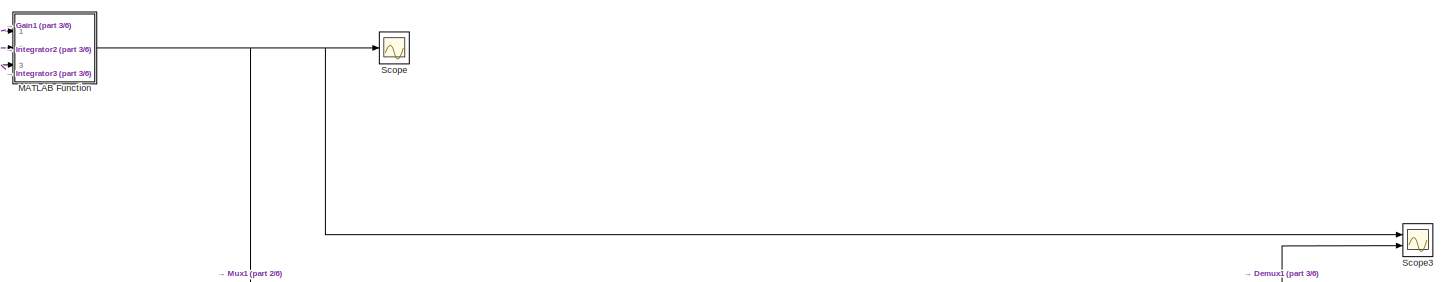
[diagram: root canvas - part 1/6, top left region]
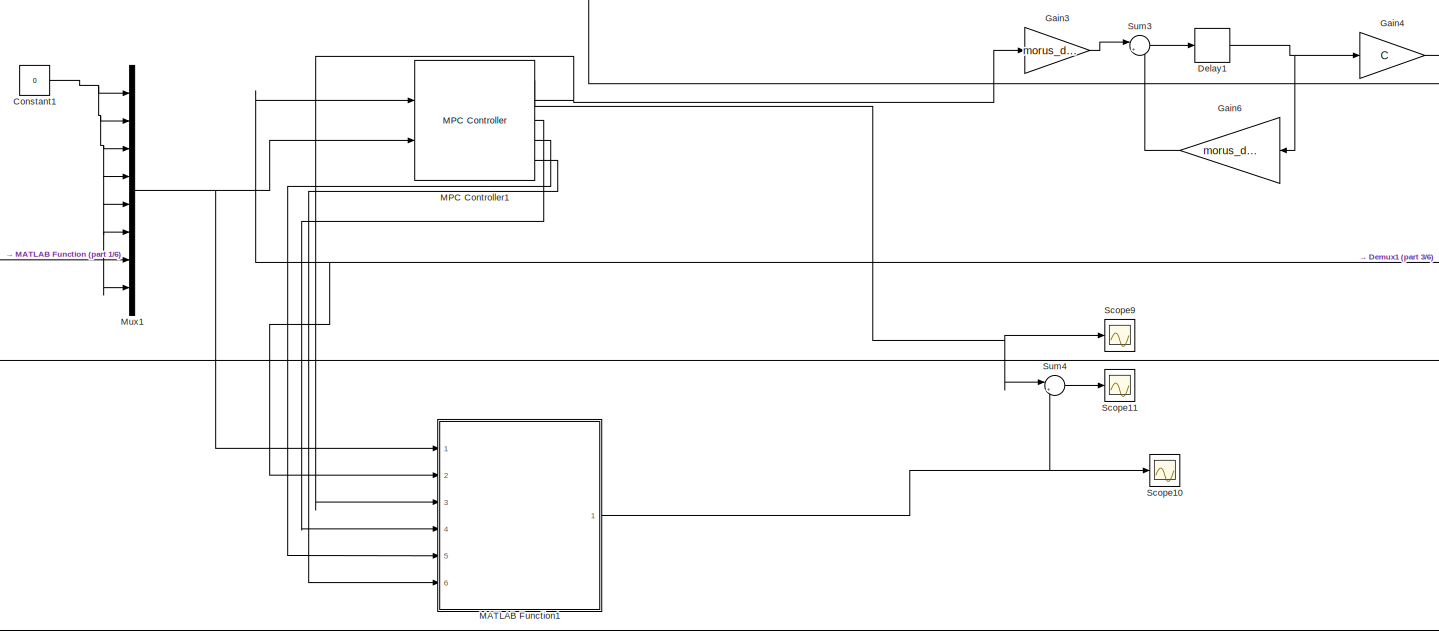
[diagram: root canvas - part 2/6, top center region]
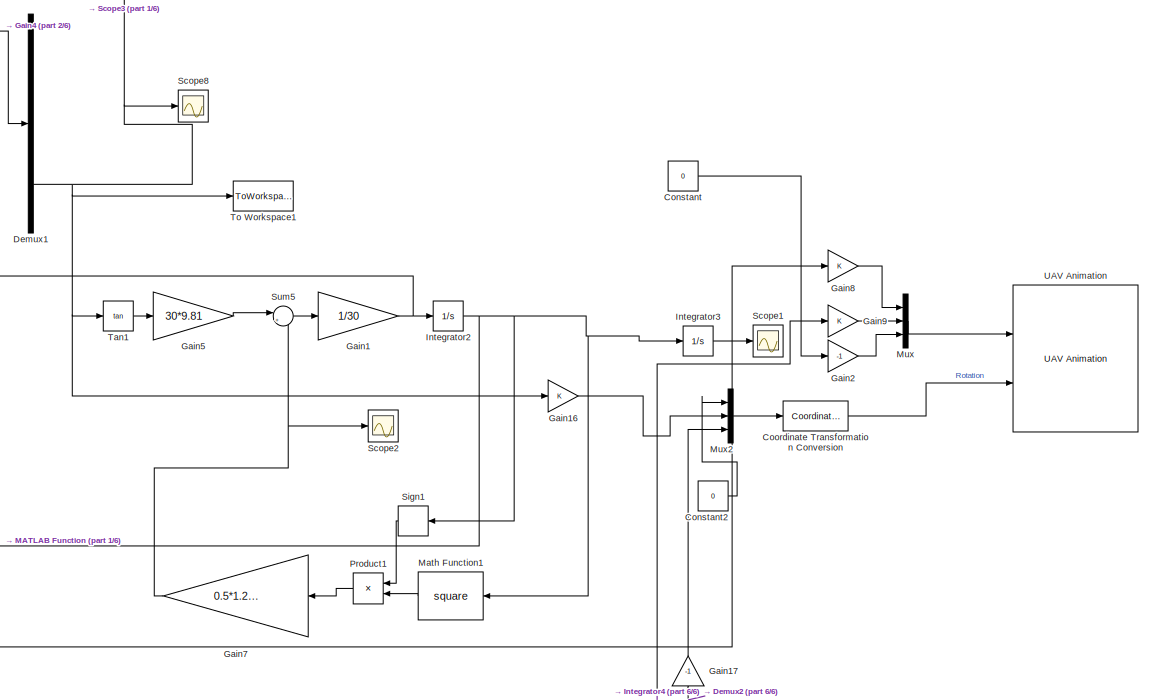
[diagram: root canvas - part 3/6, middle right region]
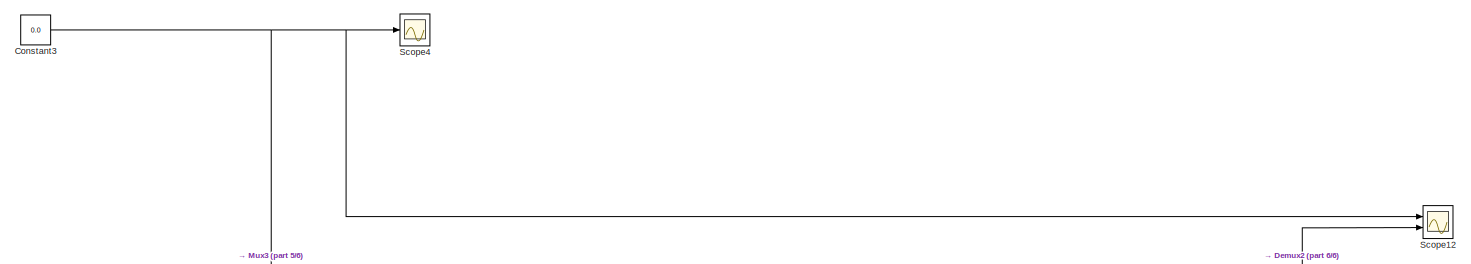
[diagram: root canvas - part 4/6, middle left region]
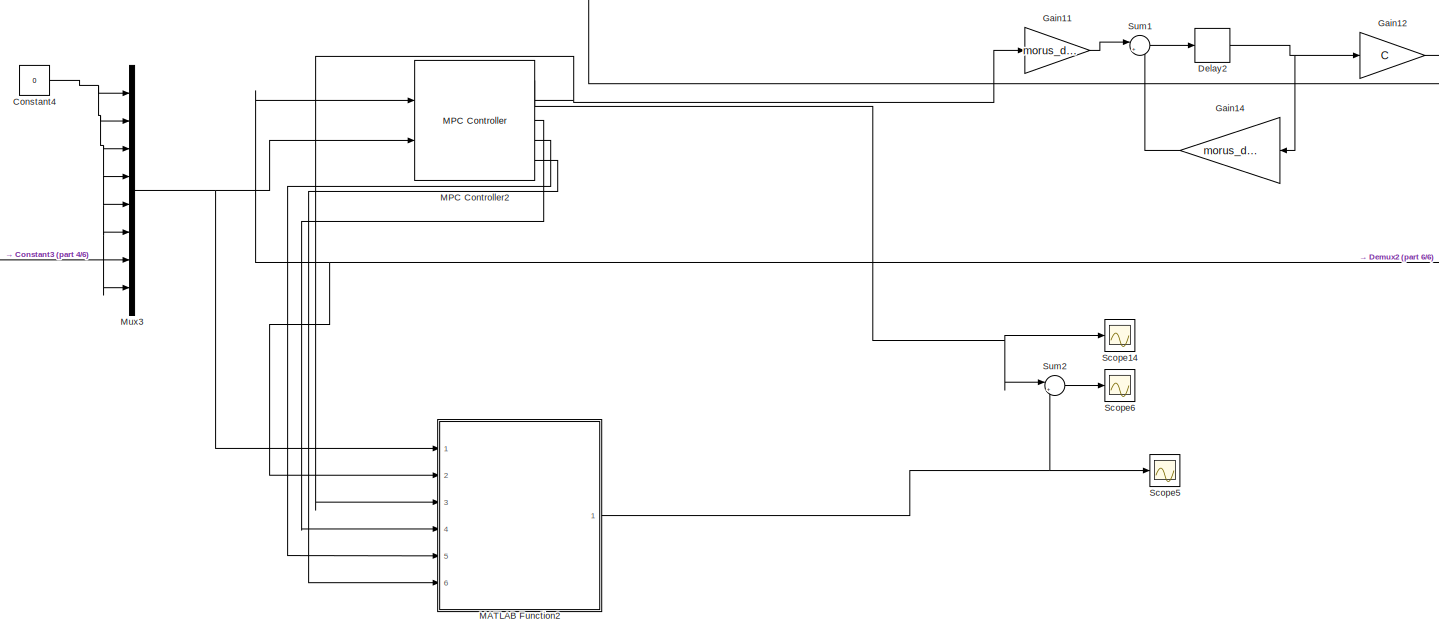
[diagram: root canvas - part 5/6, bottom center region]
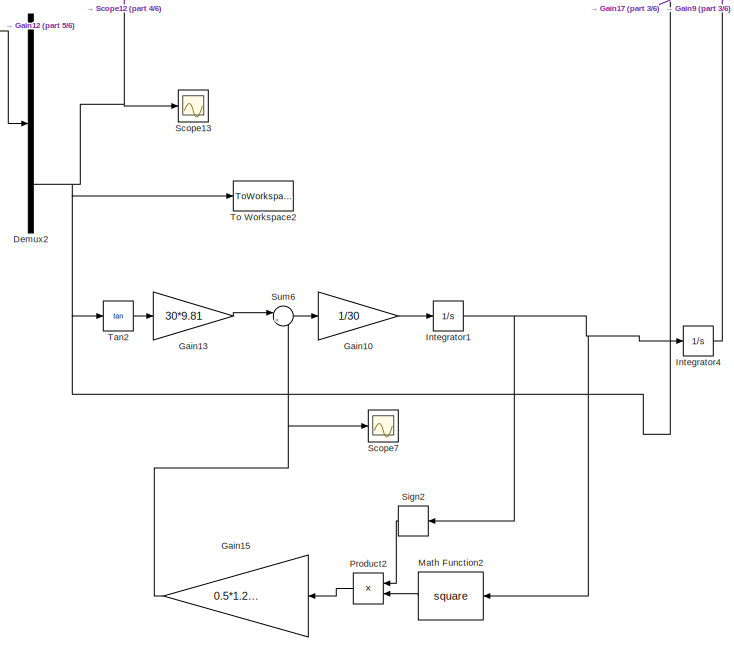
[diagram: root canvas - part 6/6, bottom right region]
MODEL slx_61ea2e24d749
KIND model
CONFIG AbsTol = auto
CONFIG EnableMultiTasking = off
CONFIG FixedStep = auto
CONFIG MaxStep = auto
CONFIG MinStep = auto
CONFIG RelTol = 1e-3
CONFIG SampleTimeConstraint = Unconstrained
CONFIG Solver = VariableStepAuto
CONFIG SolverName = VariableStepAuto
CONFIG StartTime = 0.0
CONFIG StopTime = 100
BLOCK [Constant] Constant
  OutDataTypeStr = double
  SampleTime = -1
  Value = 0
BLOCK [Constant] Constant1
  Value = 0
BLOCK [Constant] Constant2
  OutDataTypeStr = double
  SampleTime = -1
  Value = 0
BLOCK [Constant] Constant3
  OutDataTypeStr = double
  SampleTime = -1
  Value = 0.0
BLOCK [Constant] Constant4
  Value = 0
BLOCK [Reference] Coordinate Transformation Conversion  REF=robotcorelib/Coordinate Transformation Conversion
  Ports = [1, 1]
  SourceBlock = robotcorelib/Coordinate Transformation Conversion
  SourceProductBaseCode = RO
  SourceProductName = Robotics System Toolbox
  SourceType = robotics.slcore.internal.block.CoordinateTransformationConversion
BLOCK [Delay] Delay1
  DelayLength = 1
  InitialCondition = 0
  InputPortMap = u0
  Ports = [1, 1]
  SampleTime = Ts_best
BLOCK [Delay] Delay2
  DelayLength = 1
  InitialCondition = 0
  InputPortMap = u0
  Ports = [1, 1]
  SampleTime = Ts_best
BLOCK [Demux] Demux1
  DisplayOption = bar
  Outputs = 8
  Ports = [1, 8]
BLOCK [Demux] Demux2
  DisplayOption = bar
  Outputs = 8
  Ports = [1, 8]
BLOCK [Gain] Gain1
  Gain = 1/30
  OutDataTypeStr = Inherit: Inherit via internal rule
  ParamDataTypeStr = Inherit: Inherit via internal rule
  SaturateOnIntegerOverflow = off
BLOCK [Gain] Gain10
  Gain = 1/30
  OutDataTypeStr = Inherit: Inherit via internal rule
  ParamDataTypeStr = Inherit: Inherit via internal rule
  SaturateOnIntegerOverflow = off
BLOCK [Gain] Gain11
  Gain = morus_disk.B
  Multiplication = Matrix(K*u)
  OutDataTypeStr = Inherit: Inherit via internal rule
  ParamDataTypeStr = Inherit: Inherit via internal rule
  SaturateOnIntegerOverflow = off
BLOCK [Gain] Gain12
  Gain = C
  Multiplication = Matrix(K*u)
  OutDataTypeStr = Inherit: Inherit via internal rule
  ParamDataTypeStr = Inherit: Inherit via internal rule
  SaturateOnIntegerOverflow = off
BLOCK [Gain] Gain13
  Gain = 30*9.81
  OutDataTypeStr = Inherit: Inherit via internal rule
  ParamDataTypeStr = Inherit: Inherit via internal rule
  SaturateOnIntegerOverflow = off
BLOCK [Gain] Gain14
  Gain = morus_disk.A
  Multiplication = Matrix(K*u)
  OutDataTypeStr = Inherit: Inherit via internal rule
  ParamDataTypeStr = Inherit: Inherit via internal rule
  SaturateOnIntegerOverflow = off
BLOCK [Gain] Gain15
  Gain = 0.5*1.215*1.05*0
  OutDataTypeStr = Inherit: Inherit via internal rule
  ParamDataTypeStr = Inherit: Inherit via internal rule
  SaturateOnIntegerOverflow = off
BLOCK [Gain] Gain16
  OutDataTypeStr = Inherit: Inherit via internal rule
  ParamDataTypeStr = Inherit: Inherit via internal rule
  SaturateOnIntegerOverflow = off
BLOCK [Gain] Gain17
  Gain = -1
  OutDataTypeStr = Inherit: Inherit via internal rule
  ParamDataTypeStr = Inherit: Inherit via internal rule
  SaturateOnIntegerOverflow = off
BLOCK [Gain] Gain2
  Gain = -1
  OutDataTypeStr = Inherit: Inherit via internal rule
  ParamDataTypeStr = Inherit: Inherit via internal rule
  SaturateOnIntegerOverflow = off
BLOCK [Gain] Gain3
  Gain = morus_disk.B
  Multiplication = Matrix(K*u)
  OutDataTypeStr = Inherit: Inherit via internal rule
  ParamDataTypeStr = Inherit: Inherit via internal rule
  SaturateOnIntegerOverflow = off
BLOCK [Gain] Gain4
  Gain = C
  Multiplication = Matrix(K*u)
  OutDataTypeStr = Inherit: Inherit via internal rule
  ParamDataTypeStr = Inherit: Inherit via internal rule
  SaturateOnIntegerOverflow = off
BLOCK [Gain] Gain5
  Gain = 30*9.81
  OutDataTypeStr = Inherit: Inherit via internal rule
  ParamDataTypeStr = Inherit: Inherit via internal rule
  SaturateOnIntegerOverflow = off
BLOCK [Gain] Gain6
  Gain = morus_disk.A
  Multiplication = Matrix(K*u)
  OutDataTypeStr = Inherit: Inherit via internal rule
  ParamDataTypeStr = Inherit: Inherit via internal rule
  SaturateOnIntegerOverflow = off
BLOCK [Gain] Gain7
  Gain = 0.5*1.215*1.05*0
  OutDataTypeStr = Inherit: Inherit via internal rule
  ParamDataTypeStr = Inherit: Inherit via internal rule
  SaturateOnIntegerOverflow = off
BLOCK [Gain] Gain8
  OutDataTypeStr = Inherit: Inherit via internal rule
  ParamDataTypeStr = Inherit: Inherit via internal rule
  SaturateOnIntegerOverflow = off
BLOCK [Gain] Gain9
  OutDataTypeStr = Inherit: Inherit via internal rule
  ParamDataTypeStr = Inherit: Inherit via internal rule
  SaturateOnIntegerOverflow = off
BLOCK [Integrator] Integrator1
  Ports = [1, 1]
BLOCK [Integrator] Integrator2
  Ports = [1, 1]
BLOCK [Integrator] Integrator3
  Ports = [1, 1]
BLOCK [Integrator] Integrator4
  Ports = [1, 1]
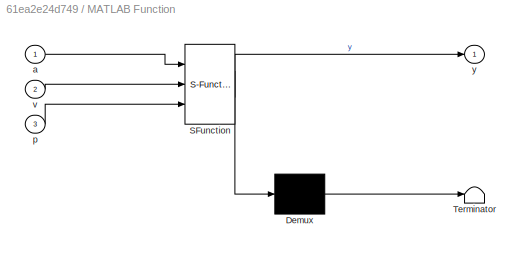
BLOCK [SubSystem] MATLAB Function
  ErrorFcn = Stateflow.Translate.translate
  PermitHierarchicalResolution = ExplicitOnly
  Ports = [3, 1]
  RequestExecContextInheritance = off
  SFBlockType = MATLAB Function
  TreatAsAtomicUnit = on
BLOCK [Demux] MATLAB Function/ Demux 
  Outputs = 1
  Ports = [1, 1]
BLOCK [S-Function] MATLAB Function/ SFunction 
  EnableBusSupport = on
  FunctionName = sf_sfun
  PortCounts = [3 2]
  Ports = [3, 2]
  SFcnIsStateOwnerBlock = off
  SFunctionDeploymentMode = off
  Tag = Stateflow S-Function proba_real_time_traj 3
BLOCK [Terminator] MATLAB Function/ Terminator 
BLOCK [Inport] MATLAB Function/a
  IconDisplay = Port number
BLOCK [Inport] MATLAB Function/p
  IconDisplay = Port number
  Port = 3
BLOCK [Inport] MATLAB Function/v
  IconDisplay = Port number
  Port = 2
BLOCK [Outport] MATLAB Function/y
  IconDisplay = Port number
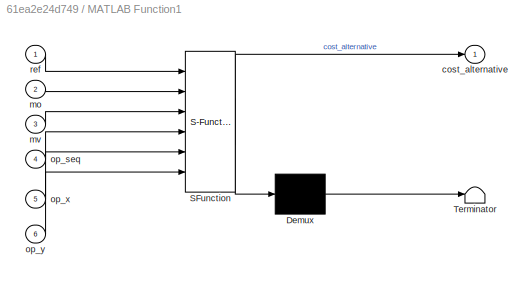
BLOCK [SubSystem] MATLAB Function1
  ErrorFcn = Stateflow.Translate.translate
  PermitHierarchicalResolution = ExplicitOnly
  Ports = [6, 1]
  RequestExecContextInheritance = off
  SFBlockType = MATLAB Function
  TreatAsAtomicUnit = on
BLOCK [Demux] MATLAB Function1/ Demux 
  Outputs = 1
  Ports = [1, 1]
BLOCK [S-Function] MATLAB Function1/ SFunction 
  EnableBusSupport = on
  FunctionName = sf_sfun
  PortCounts = [6 2]
  Ports = [6, 2]
  SFcnIsStateOwnerBlock = off
  SFunctionDeploymentMode = off
  Tag = Stateflow S-Function proba_real_time_traj 1
BLOCK [Terminator] MATLAB Function1/ Terminator 
BLOCK [Outport] MATLAB Function1/cost_alternative
  IconDisplay = Port number
BLOCK [Inport] MATLAB Function1/mo
  IconDisplay = Port number
  Port = 2
BLOCK [Inport] MATLAB Function1/mv
  IconDisplay = Port number
  Port = 3
BLOCK [Inport] MATLAB Function1/op_seq
  IconDisplay = Port number
  Port = 4
BLOCK [Inport] MATLAB Function1/op_x
  IconDisplay = Port number
  Port = 5
BLOCK [Inport] MATLAB Function1/op_y
  IconDisplay = Port number
  Port = 6
BLOCK [Inport] MATLAB Function1/ref
  IconDisplay = Port number
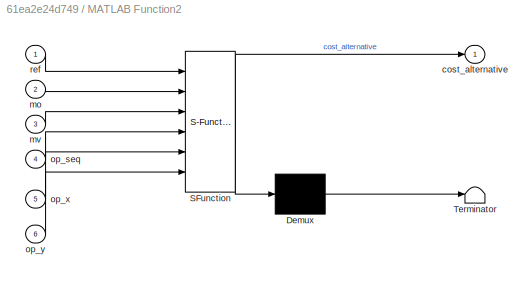
BLOCK [SubSystem] MATLAB Function2
  ErrorFcn = Stateflow.Translate.translate
  PermitHierarchicalResolution = ExplicitOnly
  Ports = [6, 1]
  RequestExecContextInheritance = off
  SFBlockType = MATLAB Function
  TreatAsAtomicUnit = on
BLOCK [Demux] MATLAB Function2/ Demux 
  Outputs = 1
  Ports = [1, 1]
BLOCK [S-Function] MATLAB Function2/ SFunction 
  EnableBusSupport = on
  FunctionName = sf_sfun
  PortCounts = [6 2]
  Ports = [6, 2]
  SFcnIsStateOwnerBlock = off
  SFunctionDeploymentMode = off
  Tag = Stateflow S-Function proba_real_time_traj 2
BLOCK [Terminator] MATLAB Function2/ Terminator 
BLOCK [Outport] MATLAB Function2/cost_alternative
  IconDisplay = Port number
BLOCK [Inport] MATLAB Function2/mo
  IconDisplay = Port number
  Port = 2
BLOCK [Inport] MATLAB Function2/mv
  IconDisplay = Port number
  Port = 3
BLOCK [Inport] MATLAB Function2/op_seq
  IconDisplay = Port number
  Port = 4
BLOCK [Inport] MATLAB Function2/op_x
  IconDisplay = Port number
  Port = 5
BLOCK [Inport] MATLAB Function2/op_y
  IconDisplay = Port number
  Port = 6
BLOCK [Inport] MATLAB Function2/ref
  IconDisplay = Port number
BLOCK [Reference] MPC Controller1  REF=mpclib/MPC Controller  (lib defined in mdl_ae329e0e0455)
  Ports = [2, 5]
  SCDEnableBlockLinearizationSpecification = on
  SourceBlock = mpclib/MPC Controller
  SourceProductBaseCode = MP
  SourceProductName = Model Predictive Control Toolbox
  SourceType = MPC
BLOCK [Reference] MPC Controller2  REF=mpclib/MPC Controller  (lib defined in mdl_ae329e0e0455)
  Ports = [2, 5]
  SCDEnableBlockLinearizationSpecification = on
  SourceBlock = mpclib/MPC Controller
  SourceProductBaseCode = MP
  SourceProductName = Model Predictive Control Toolbox
  SourceType = MPC
BLOCK [Math] Math Function1
  Operator = square
  Ports = [1, 1]
BLOCK [Math] Math Function2
  Operator = square
  Ports = [1, 1]
BLOCK [Mux] Mux
  DisplayOption = bar
  Inputs = 3
  Ports = [3, 1]
BLOCK [Mux] Mux1
  DisplayOption = bar
  Inputs = 8
  Ports = [8, 1]
BLOCK [Mux] Mux2
  DisplayOption = bar
  Inputs = 3
  Ports = [3, 1]
BLOCK [Mux] Mux3
  DisplayOption = bar
  Inputs = 8
  Ports = [8, 1]
BLOCK [Product] Product1
  InputSameDT = off
  OutDataTypeStr = Inherit: Inherit via internal rule
  Ports = [2, 1]
  RndMeth = Floor
  SaturateOnIntegerOverflow = off
BLOCK [Product] Product2
  InputSameDT = off
  OutDataTypeStr = Inherit: Inherit via internal rule
  Ports = [2, 1]
  RndMeth = Floor
  SaturateOnIntegerOverflow = off
BLOCK [Scope] Scope
  Floating = off
  NumInputPorts = 1
  Ports = [1]
  ScopeSpecificationString = Simulink.scopes.TimeScopeBlockCfg('CurrentConfiguration', extmgr.ConfigurationSet(extmgr.Configuration('Core','General UI',true),extmgr.Configuration('Core','Source UI',true),extmgr.Configuration('Sources','WiredSimulink',true),extmgr.Configuration('Visuals','Time Domain',true,'SerializedDisplays',{struct('MinYLimReal','-0.00613','MaxYLimReal','0.05513','YLabelReal','','MinYLimMag','0.00000','MaxY...<+1387ch>
BLOCK [Scope] Scope1
  Floating = off
  NumInputPorts = 1
  Ports = [1]
  ScopeSpecificationString = Simulink.scopes.TimeScopeBlockCfg('CurrentConfiguration', extmgr.ConfigurationSet(extmgr.Configuration('Core','General UI',true),extmgr.Configuration('Core','Source UI',true),extmgr.Configuration('Sources','WiredSimulink',true,'DataLoggingVariableName','ScopeData5'),extmgr.Configuration('Visuals','Time Domain',true,'SerializedDisplays',{struct('MinYLimReal','-13.34922','MaxYLimReal','120.14301','Y...<+1732ch>
BLOCK [Scope] Scope10
  Floating = off
  NumInputPorts = 1
  Ports = [1]
  ScopeSpecificationString = Simulink.scopes.TimeScopeBlockCfg('CurrentConfiguration', extmgr.ConfigurationSet(extmgr.Configuration('Core','General UI',true),extmgr.Configuration('Core','Source UI',true),extmgr.Configuration('Sources','WiredSimulink',true,'DataLoggingVariableName','ScopeData1'),extmgr.Configuration('Visuals','Time Domain',true,'SerializedDisplays',{struct('MinYLimReal','-0.00452','MaxYLimReal','0.04072','YLab...<+1401ch>
BLOCK [Scope] Scope11
  Floating = off
  NumInputPorts = 1
  Ports = [1]
  ScopeSpecificationString = Simulink.scopes.TimeScopeBlockCfg('CurrentConfiguration', extmgr.ConfigurationSet(extmgr.Configuration('Core','General UI',true),extmgr.Configuration('Core','Source UI',true),extmgr.Configuration('Sources','WiredSimulink',true,'DataLoggingVariableName','ScopeData2'),extmgr.Configuration('Visuals','Time Domain',true,'SerializedDisplays',{struct('MinYLimReal','-7082780.41438','MaxYLimReal','63745024...<+1725ch>
BLOCK [Scope] Scope12
  Floating = off
  NumInputPorts = 2
  Ports = [2]
  ScopeSpecificationString = Simulink.scopes.TimeScopeBlockCfg('CurrentConfiguration', extmgr.ConfigurationSet(extmgr.Configuration('Core','General UI',true),extmgr.Configuration('Core','Source UI',true),extmgr.Configuration('Sources','WiredSimulink',true,'DataLoggingVariableName','ScopeData2'),extmgr.Configuration('Visuals','Time Domain',true,'SerializedDisplays',{struct('MinYLimReal','-0.06391','MaxYLimReal','0.06391','YLab...<+1447ch>
BLOCK [Scope] Scope13
  Floating = off
  NumInputPorts = 1
  Ports = [1]
  ScopeSpecificationString = Simulink.scopes.TimeScopeBlockCfg('CurrentConfiguration', extmgr.ConfigurationSet(extmgr.Configuration('Core','General UI',true),extmgr.Configuration('Core','Source UI',true),extmgr.Configuration('Sources','WiredSimulink',true,'DataLoggingVariableName','ScopeData3'),extmgr.Configuration('Visuals','Time Domain',true,'SerializedDisplays',{struct('MinYLimReal','-1.00000','MaxYLimReal','1.00000','YLab...<+1419ch>
BLOCK [Scope] Scope14
  Floating = off
  NumInputPorts = 1
  Ports = [1]
  ScopeSpecificationString = Simulink.scopes.TimeScopeBlockCfg('CurrentConfiguration', extmgr.ConfigurationSet(extmgr.Configuration('Core','General UI',true),extmgr.Configuration('Core','Source UI',true),extmgr.Configuration('Sources','WiredSimulink',true,'DataLoggingVariableName','ScopeData4'),extmgr.Configuration('Visuals','Time Domain',true,'SerializedDisplays',{struct('MinYLimReal','-0.00452','MaxYLimReal','0.04072','YLab...<+1405ch>
BLOCK [Scope] Scope2
  Floating = off
  NumInputPorts = 1
  Ports = [1]
  ScopeSpecificationString = Simulink.scopes.TimeScopeBlockCfg('CurrentConfiguration', extmgr.ConfigurationSet(extmgr.Configuration('Core','General UI',true),extmgr.Configuration('Core','Source UI',true),extmgr.Configuration('Sources','WiredSimulink',true,'DataLoggingVariableName','ScopeData6'),extmgr.Configuration('Visuals','Time Domain',true,'SerializedDisplays',{struct('MinYLimReal','-1.00000','MaxYLimReal','1.00000','YLab...<+1416ch>
BLOCK [Scope] Scope3
  Floating = off
  NumInputPorts = 2
  Ports = [2]
  ScopeSpecificationString = Simulink.scopes.TimeScopeBlockCfg('CurrentConfiguration', extmgr.ConfigurationSet(extmgr.Configuration('Core','General UI',true),extmgr.Configuration('Core','Source UI',true),extmgr.Configuration('Sources','WiredSimulink',true,'DataLoggingVariableName','ScopeData1'),extmgr.Configuration('Visuals','Time Domain',true,'SerializedDisplays',{struct('MinYLimReal','-0.06391','MaxYLimReal','0.06391','YLab...<+1447ch>
BLOCK [Scope] Scope4
  Floating = off
  NumInputPorts = 1
  Ports = [1]
  ScopeSpecificationString = Simulink.scopes.TimeScopeBlockCfg('CurrentConfiguration', extmgr.ConfigurationSet(extmgr.Configuration('Core','General UI',true),extmgr.Configuration('Core','Source UI',true),extmgr.Configuration('Sources','WiredSimulink',true,'DataLoggingVariableName','ScopeData5'),extmgr.Configuration('Visuals','Time Domain',true,'SerializedDisplays',{struct('MinYLimReal','-1.00000','MaxYLimReal','1.00000','YLab...<+1422ch>
BLOCK [Scope] Scope5
  Floating = off
  NumInputPorts = 1
  Ports = [1]
  ScopeSpecificationString = Simulink.scopes.TimeScopeBlockCfg('CurrentConfiguration', extmgr.ConfigurationSet(extmgr.Configuration('Core','General UI',true),extmgr.Configuration('Core','Source UI',true),extmgr.Configuration('Sources','WiredSimulink',true,'DataLoggingVariableName','ScopeData6'),extmgr.Configuration('Visuals','Time Domain',true,'SerializedDisplays',{struct('MinYLimReal','-0.00452','MaxYLimReal','0.04072','YLab...<+1401ch>
BLOCK [Scope] Scope6
  Floating = off
  NumInputPorts = 1
  Ports = [1]
  ScopeSpecificationString = Simulink.scopes.TimeScopeBlockCfg('CurrentConfiguration', extmgr.ConfigurationSet(extmgr.Configuration('Core','General UI',true),extmgr.Configuration('Core','Source UI',true),extmgr.Configuration('Sources','WiredSimulink',true,'DataLoggingVariableName','ScopeData7'),extmgr.Configuration('Visuals','Time Domain',true,'SerializedDisplays',{struct('MinYLimReal','-7082780.41438','MaxYLimReal','63745024...<+1725ch>
BLOCK [Scope] Scope7
  Floating = off
  NumInputPorts = 1
  Ports = [1]
  ScopeSpecificationString = Simulink.scopes.TimeScopeBlockCfg('CurrentConfiguration', extmgr.ConfigurationSet(extmgr.Configuration('Core','General UI',true),extmgr.Configuration('Core','Source UI',true),extmgr.Configuration('Sources','WiredSimulink',true,'DataLoggingVariableName','ScopeData8'),extmgr.Configuration('Visuals','Time Domain',true,'SerializedDisplays',{struct('MinYLimReal','-1.00000','MaxYLimReal','1.00000','YLab...<+1416ch>
BLOCK [Scope] Scope8
  Floating = off
  NumInputPorts = 1
  Ports = [1]
  ScopeSpecificationString = Simulink.scopes.TimeScopeBlockCfg('CurrentConfiguration', extmgr.ConfigurationSet(extmgr.Configuration('Core','General UI',true),extmgr.Configuration('Core','Source UI',true),extmgr.Configuration('Sources','WiredSimulink',true,'DataLoggingVariableName','ScopeData3'),extmgr.Configuration('Visuals','Time Domain',true,'SerializedDisplays',{struct('MinYLimReal','-0.06389','MaxYLimReal','0.06389','YLab...<+1419ch>
BLOCK [Scope] Scope9
  Floating = off
  NumInputPorts = 1
  Ports = [1]
  ScopeSpecificationString = Simulink.scopes.TimeScopeBlockCfg('CurrentConfiguration', extmgr.ConfigurationSet(extmgr.Configuration('Core','General UI',true),extmgr.Configuration('Core','Source UI',true),extmgr.Configuration('Sources','WiredSimulink',true,'DataLoggingVariableName','ScopeData4'),extmgr.Configuration('Visuals','Time Domain',true,'SerializedDisplays',{struct('MinYLimReal','-0.00452','MaxYLimReal','0.04072','YLab...<+1405ch>
BLOCK [Signum] Sign1
BLOCK [Signum] Sign2
BLOCK [Sum] Sum1
  IconShape = round
  InputSameDT = off
  Inputs = |++
  OutDataTypeStr = Inherit: Inherit via internal rule
  Ports = [2, 1]
  SaturateOnIntegerOverflow = off
BLOCK [Sum] Sum2
  IconShape = round
  InputSameDT = off
  Inputs = |+-
  OutDataTypeStr = Inherit: Inherit via internal rule
  Ports = [2, 1]
  SaturateOnIntegerOverflow = off
BLOCK [Sum] Sum3
  IconShape = round
  InputSameDT = off
  Inputs = |++
  OutDataTypeStr = Inherit: Inherit via internal rule
  Ports = [2, 1]
  SaturateOnIntegerOverflow = off
BLOCK [Sum] Sum4
  IconShape = round
  InputSameDT = off
  Inputs = |+-
  OutDataTypeStr = Inherit: Inherit via internal rule
  Ports = [2, 1]
  SaturateOnIntegerOverflow = off
BLOCK [Sum] Sum5
  IconShape = round
  InputSameDT = off
  Inputs = |+-
  OutDataTypeStr = Inherit: Inherit via internal rule
  Ports = [2, 1]
  SaturateOnIntegerOverflow = off
BLOCK [Sum] Sum6
  IconShape = round
  InputSameDT = off
  Inputs = |+-
  OutDataTypeStr = Inherit: Inherit via internal rule
  Ports = [2, 1]
  SaturateOnIntegerOverflow = off
BLOCK [Trigonometry] Tan1
  Operator = tan
  Ports = [1, 1]
BLOCK [Trigonometry] Tan2
  Operator = tan
  Ports = [1, 1]
BLOCK [ToWorkspace] To Workspace1
  FixptAsFi = on
  MaxDataPoints = inf
  Ports = [1]
  SampleTime = 0.01
  Save2DSignal = 3-D array (concatenate along third dimension)
  SaveFormat = Structure With Time
  VariableName = kut_izlaz1
BLOCK [ToWorkspace] To Workspace2
  FixptAsFi = on
  MaxDataPoints = inf
  Ports = [1]
  SampleTime = 0.01
  Save2DSignal = 3-D array (concatenate along third dimension)
  SaveFormat = Structure With Time
  VariableName = kut_izlaz
BLOCK [Reference] UAV Animation  REF=robotuavlib/UAV Animation
  Ports = [2]
  SourceBlock = robotuavlib/UAV Animation
  SourceProductName = Robotics System Toolbox
  SourceType = robotics.sluav.internal.system.UAVAnimation
NET Constant1:1 -> Mux1:1, Mux1:2, Mux1:3, Mux1:4, Mux1:5, Mux1:6, Mux1:8
LINE Constant2:1 -> Mux2:1
NET Constant3:1 -> Mux3:7, Scope12:1, Scope4:1
NET Constant4:1 -> Mux3:1, Mux3:2, Mux3:3, Mux3:4, Mux3:5, Mux3:6, Mux3:8
LINE Constant:1 -> Gain2:1
LINE Coordinate Transformation Conversion:1 -> UAV Animation:2
NET Delay1:1 -> Gain4:1, Gain6:1
NET Delay2:1 -> Gain12:1, Gain14:1
NET Demux1:7 -> Gain16:1, Scope3:2, Scope8:1, Tan1:1, To Workspace1:1
NET Demux2:7 -> Gain17:1, Scope12:2, Scope13:1, Tan2:1, To Workspace2:1
LINE Gain10:1 -> Integrator1:1
LINE Gain11:1 -> Sum1:1
NET Gain12:1 -> Demux2:1, MATLAB Function2:2, MPC Controller2:1
LINE Gain13:1 -> Sum6:1
LINE Gain14:1 -> Sum1:2
NET Gain15:1 -> Scope7:1, Sum6:2
LINE Gain16:1 -> Mux2:2
LINE Gain17:1 -> Mux2:3
NET Gain1:1 -> Integrator2:1, MATLAB Function:1
LINE Gain2:1 -> Mux:3
LINE Gain3:1 -> Sum3:1
NET Gain4:1 -> Demux1:1, MATLAB Function1:2, MPC Controller1:1
LINE Gain5:1 -> Sum5:1
LINE Gain6:1 -> Sum3:2
NET Gain7:1 -> Scope2:1, Sum5:2
LINE Gain8:1 -> Mux:1
LINE Gain9:1 -> Mux:2
NET Integrator1:1 -> Integrator4:1, Math Function2:1, Sign2:1
NET Integrator2:1 -> Integrator3:1, MATLAB Function:2, Math Function1:1, Sign1:1
NET Integrator3:1 -> Gain8:1, MATLAB Function:3, Scope1:1
LINE Integrator4:1 -> Gain9:1
NET MATLAB Function1:1 -> Scope10:1, Sum4:2
NET MATLAB Function2:1 -> Scope5:1, Sum2:2
NET MATLAB Function:1 -> Mux1:7, Scope3:1, Scope:1
NET MPC Controller1:1 -> Gain3:1, MATLAB Function1:3
NET MPC Controller1:2 -> Scope9:1, Sum4:1
LINE MPC Controller1:3 -> MATLAB Function1:4
LINE MPC Controller1:4 -> MATLAB Function1:5
LINE MPC Controller1:5 -> MATLAB Function1:6
NET MPC Controller2:1 -> Gain11:1, MATLAB Function2:3
NET MPC Controller2:2 -> Scope14:1, Sum2:1
LINE MPC Controller2:3 -> MATLAB Function2:4
LINE MPC Controller2:4 -> MATLAB Function2:5
LINE MPC Controller2:5 -> MATLAB Function2:6
LINE Math Function1:1 -> Product1:2
LINE Math Function2:1 -> Product2:2
NET Mux1:1 -> MATLAB Function1:1, MPC Controller1:2
LINE Mux2:1 -> Coordinate Transformation Conversion:1
NET Mux3:1 -> MATLAB Function2:1, MPC Controller2:2
LINE Mux:1 -> UAV Animation:1
LINE Product1:1 -> Gain7:1
LINE Product2:1 -> Gain15:1
LINE Sign1:1 -> Product1:1
LINE Sign2:1 -> Product2:1
LINE Sum1:1 -> Delay2:1
LINE Sum2:1 -> Scope6:1
LINE Sum3:1 -> Delay1:1
LINE Sum4:1 -> Scope11:1
LINE Sum5:1 -> Gain1:1
LINE Sum6:1 -> Gain10:1
LINE Tan1:1 -> Gain5:1
LINE Tan2:1 -> Gain13:1
note: NET lines group one-source signal fan-out (src -> all destinations, sorted); 1:1 wires keep LINE
CHART MATLAB Function1 states=1 transitions=1
  STATE_LABEL 'eML_blk_kernel()'
  STATE_LABEL "SCRIPT:\nfunction cost_alternative = fcn(ref, mo, mv, op_seq, op_x, op_y)\nall_ref = repmat(ref,1,size(op_y,1)-1);\n\nS_mv = diag([0.58,0.58, 100, 100]);\nS_ov = diag([0.58, 4, 0.58, 4, 800, 800, 0.5236,0.5236]);\n\ne_y = (S_ov)\\( (op_y(2:end,:)' - all_ref));\ne_u = (S_mv)\\((- op_seq(2:end,:)'));\ne_du = (S_mv)\\((op_seq(2:end,:)' - op_seq(1:end-1,:)'));\n\n\nMV_weights = diag( [0.406005849709838 0.40600584970...<+470ch>"
CHART MATLAB Function2 states=1 transitions=1
  STATE_LABEL 'eML_blk_kernel()'
  STATE_LABEL "SCRIPT:\nfunction cost_alternative = fcn(ref, mo, mv, op_seq, op_x, op_y)\nall_ref = repmat(ref,1,size(op_y,1)-1);\n\nS_mv = diag([0.58,0.58, 100, 100]);\nS_ov = diag([0.58, 4, 0.58, 4, 800, 800, 0.5236,0.5236]);\n\ne_y = (S_ov)\\( (op_y(2:end,:)' - all_ref));\ne_u = (S_mv)\\((- op_seq(2:end,:)'));\ne_du = (S_mv)\\((op_seq(2:end,:)' - op_seq(1:end-1,:)'));\n\n\nMV_weights = diag( [0.406005849709838 0.40600584970...<+470ch>"
CHART MATLAB Function states=1 transitions=1
  STATE_LABEL 'eML_blk_kernel()'
  STATE_LABEL 'SCRIPT:\nfunction y = fcn(a,v,p)\njerk_max = 1;\njerk_min = -1;\nacc_max = 0.5; \nacc_min = -0.5;\nvel_max  = 1;\nvel_min = -1;\nvel_start = v; \nvel_end = 0;\np_start  =p;\np_end = 20;\nacc_start =a ;\nacc_end = 0;\ntheta = 0.0;\ntimer = 0.0;\n[theta, timer] = calculate_theta_simulink(jerk_max, jerk_min, acc_max, acc_min,vel_max,vel_min, vel_start, vel_end ,p_start , p_end , acc_start, acc_end );\nif(isempty(thet...<+43ch>'
